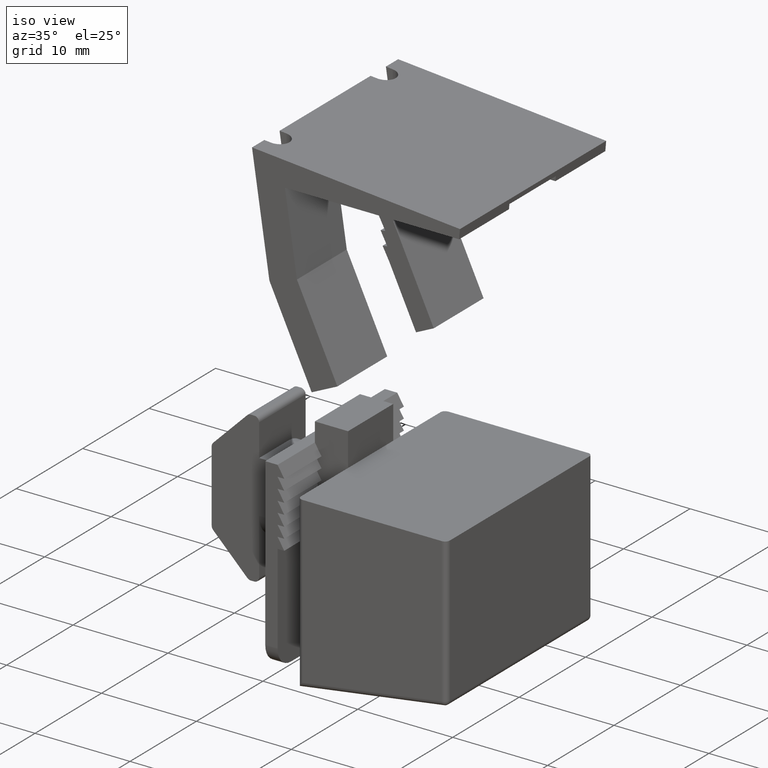
[diagram: clean part render]
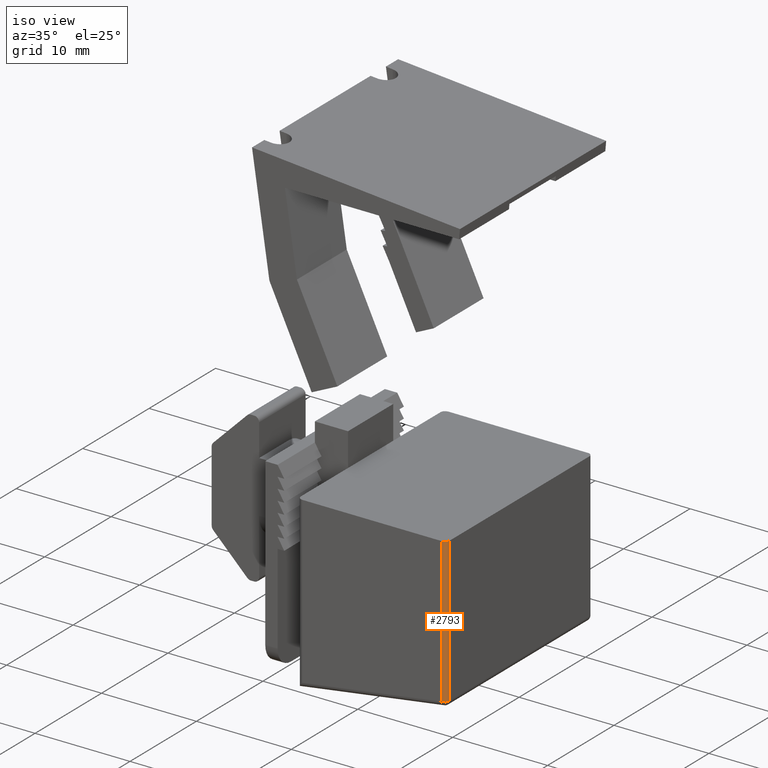
[diagram: same view with one face highlighted and labeled with its STEP entity id]
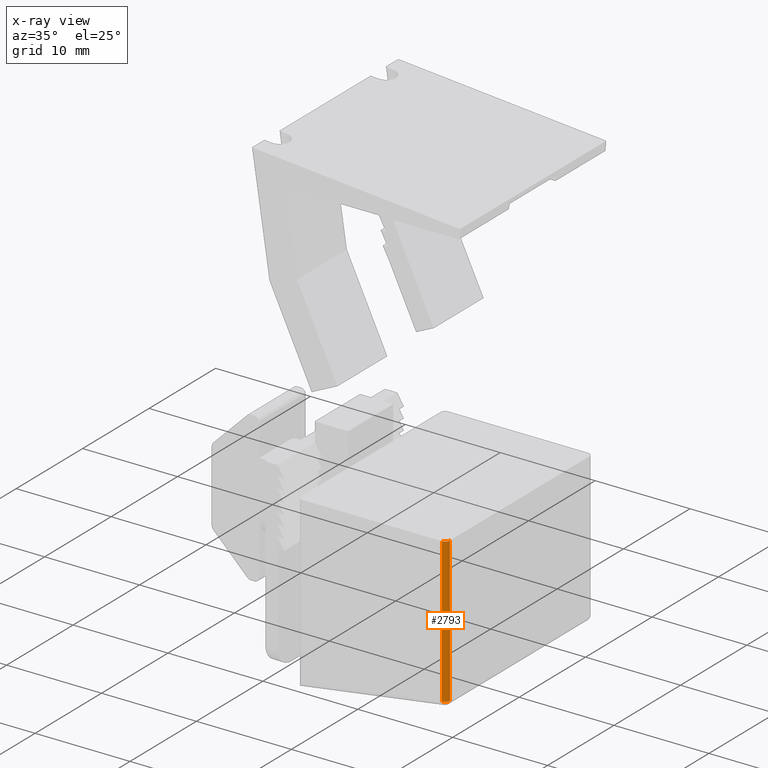
[diagram: x-ray of the same camera — body ghosted, the highlighted face saturated]
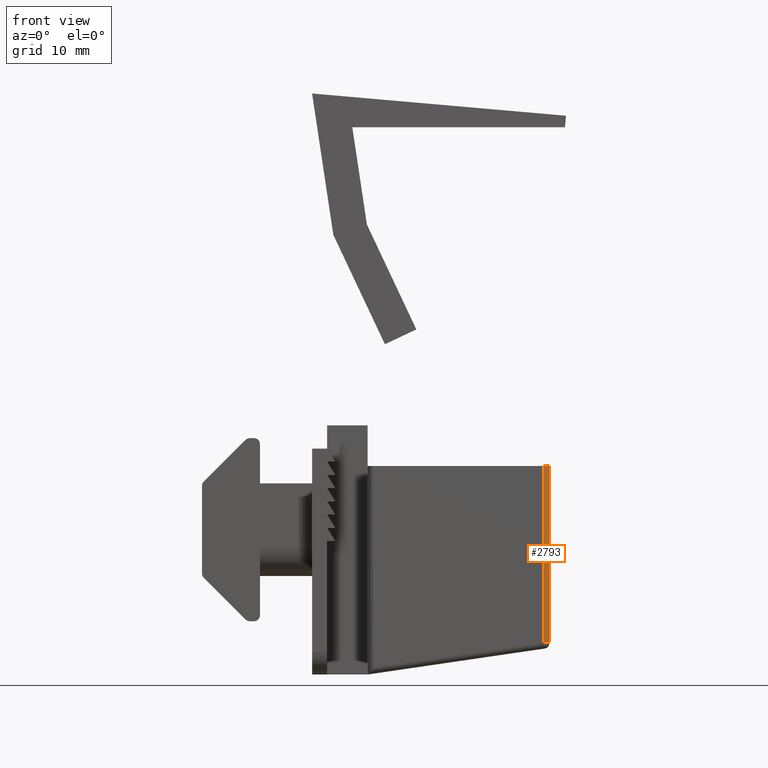
[diagram: same view with one face highlighted and labeled with its STEP entity id]
A machine part, iso view. The second image highlights one B-rep face of the part: STEP entity #2793.
The next image is the same camera in x-ray: the body ghosted, the highlighted face saturated — about 0% of this face is hidden behind the body in this view.
A second angle (front view) of the same face is appended — the face is thin or edge-on in the first view.
In plain terms, the highlighted cylindrical surface (edge-blend (fillet) strip) has radius 0.5 mm, axis along (0, -0, 1).
Its self-contained STEP definition (entity closure, byte-faithful):
#166=FACE_OUTER_BOUND('',#316,.T.);
#316=EDGE_LOOP('',(#1977,#1978,#1979,#1980));
#460=CIRCLE('',#3011,0.5);
#466=CIRCLE('',#3024,0.5);
#517=LINE('',#4032,#890);
#518=LINE('',#4033,#891);
#890=VECTOR('',#3269,10.);
#891=VECTOR('',#3270,10.);
#1260=VERTEX_POINT('',#3999);
#1261=VERTEX_POINT('',#4001);
#1269=VERTEX_POINT('',#4029);
#1270=VERTEX_POINT('',#4030);
#1537=EDGE_CURVE('',#1260,#1261,#460,.F.);
#1550=EDGE_CURVE('',#1269,#1270,#466,.T.);
#1551=EDGE_CURVE('',#1270,#1260,#517,.T.);
#1552=EDGE_CURVE('',#1261,#1269,#518,.T.);
#1977=ORIENTED_EDGE('',*,*,#1550,.T.);
#1978=ORIENTED_EDGE('',*,*,#1551,.T.);
#1979=ORIENTED_EDGE('',*,*,#1537,.T.);
#1980=ORIENTED_EDGE('',*,*,#1552,.T.);
#2768=CYLINDRICAL_SURFACE('',#3023,0.5);
#2793=ADVANCED_FACE('',(#166),#2768,.T.);
#3011=AXIS2_PLACEMENT_3D('',#4003,#3235,#3236);
#3023=AXIS2_PLACEMENT_3D('',#4028,#3265,#3266);
#3024=AXIS2_PLACEMENT_3D('',#4031,#3267,#3268);
#3235=DIRECTION('center_axis',(0.,0.,1.));
#3236=DIRECTION('ref_axis',(0.,1.,0.));
#3265=DIRECTION('center_axis',(0.,0.,-1.));
#3266=DIRECTION('ref_axis',(0.707106781186548,0.707106781186548,0.));
#3267=DIRECTION('center_axis',(-3.53574211664063E-17,0.,1.));
#3268=DIRECTION('ref_axis',(0.707106781186548,0.707106781186548,0.));
#3269=DIRECTION('',(0.,0.,1.));
#3270=DIRECTION('',(0.,0.,-1.));
#3999=CARTESIAN_POINT('',(20.,11.,16.76791156036));
#4001=CARTESIAN_POINT('',(20.5,10.5,16.76791156036));
#4003=CARTESIAN_POINT('Origin',(20.,10.5,16.76791156036));
#4028=CARTESIAN_POINT('Origin',(20.,10.5,13.5834471255872));
#4029=CARTESIAN_POINT('',(20.5,10.5,1.5));
#4030=CARTESIAN_POINT('',(20.,11.,1.5));
#4031=CARTESIAN_POINT('Origin',(20.,10.5,1.5));
#4032=CARTESIAN_POINT('',(20.,11.,13.5834471255872));
#4033=CARTESIAN_POINT('',(20.5,10.5,13.5834471255872));